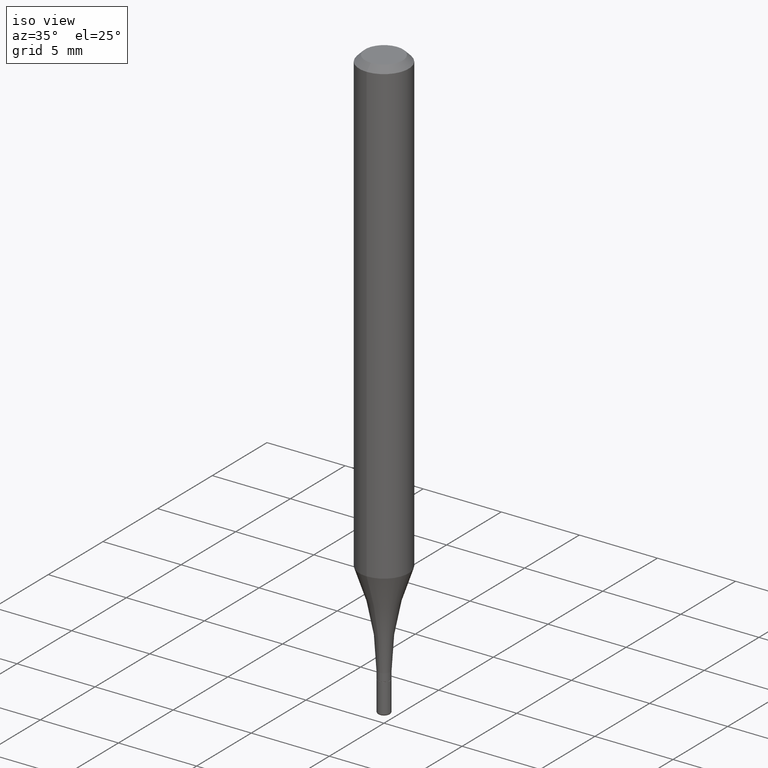
[diagram: clean part render]
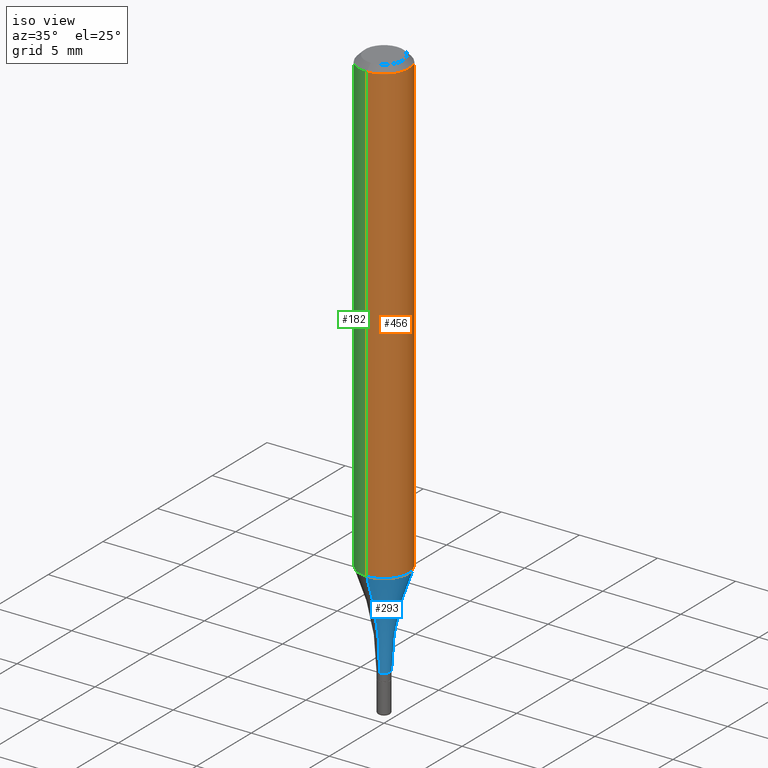
[diagram: same view with three faces highlighted in distinct colors, each labeled with its STEP entity id]
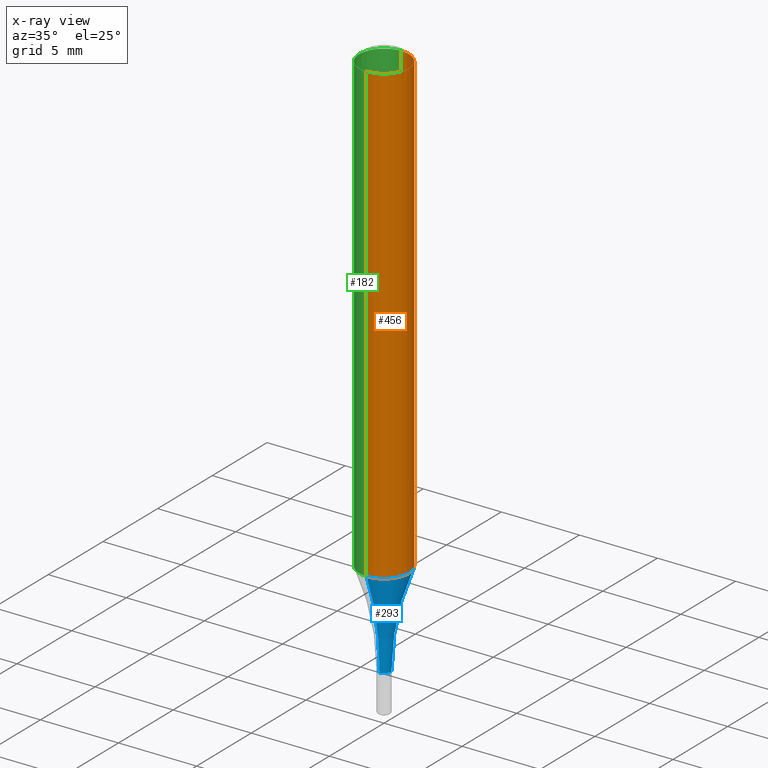
[diagram: x-ray of the same camera — body ghosted, the three highlighted faces saturated]
A machine part, iso view with three faces highlighted in distinct colors.
The next image is the same camera in x-ray (body ghosted, the three faces saturated) — at least one of them is partly hidden behind the body in this view.
Their STEP definitions:

[orange] entity #456 — the highlighted cylindrical surface (edge-blend (fillet) strip) has radius 1.5875 mm, axis along (-0, 0, 1).
#6 = ORIENTED_EDGE ( 'NONE', *, *, #306, .F. ) ;
#23 = AXIS2_PLACEMENT_3D ( 'NONE', #154, #414, #447 ) ;
#25 = CARTESIAN_POINT ( 'NONE',  ( -4.364351673553640100E-16, -0.06250000000000409395, -1.164459708680822603 ) ) ;
#29 = ORIENTED_EDGE ( 'NONE', *, *, #59, .T. ) ;
#39 = VECTOR ( 'NONE', #170, 39.37007874015748143 ) ;
#59 = EDGE_CURVE ( 'NONE', #120, #348, #302, .T. ) ;
#91 = DIRECTION ( 'NONE',  ( -6.982962677686265133E-15, -1.000000000000000000, 3.491850649655520627E-15 ) ) ;
#101 = DIRECTION ( 'NONE',  ( -2.445210917823208217E-29, 3.491850649655521021E-15, 1.000000000000000000 ) ) ;
#119 = LINE ( 'NONE', #162, #258 ) ;
#120 = VERTEX_POINT ( 'NONE', #25 ) ;
#129 = CARTESIAN_POINT ( 'NONE',  ( 0.000000000000000000, 0.000000000000000000, 0.000000000000000000 ) ) ;
#142 = AXIS2_PLACEMENT_3D ( 'NONE', #234, #101, #508 ) ;
#154 = CARTESIAN_POINT ( 'NONE',  ( 3.667816376734739913E-31, -5.237775974483178191E-17, -0.01499999999999970281 ) ) ;
#162 = CARTESIAN_POINT ( 'NONE',  ( 4.440892098500626162E-16, 0.06250000000000001388, -2.182406656034700885E-16 ) ) ;
#167 = DIRECTION ( 'NONE',  ( -2.445210917823208217E-29, 3.491850649655521416E-15, 1.000000000000000000 ) ) ;
#170 = DIRECTION ( 'NONE',  ( -2.445210917823208217E-29, 3.491850649655521416E-15, 1.000000000000000000 ) ) ;
#172 = CARTESIAN_POINT ( 'NONE',  ( -4.287811248607203282E-16, -0.06250000000000005551, -0.01499999999999948597 ) ) ;
#178 = FACE_OUTER_BOUND ( 'NONE', #394, .T. ) ;
#199 = AXIS2_PLACEMENT_3D ( 'NONE', #129, #220, #91 ) ;
#220 = DIRECTION ( 'NONE',  ( -2.445210917823208217E-29, 3.491850649655521021E-15, 1.000000000000000000 ) ) ;
#234 = CARTESIAN_POINT ( 'NONE',  ( 2.847349593031579707E-29, -4.066119390254809965E-15, -1.164459708680822603 ) ) ;
#244 = EDGE_CURVE ( 'NONE', #358, #476, #353, .T. ) ;
#253 = CARTESIAN_POINT ( 'NONE',  ( 4.440892098500906207E-16, 0.06249999999999589911, -1.164459708680822825 ) ) ;
#258 = VECTOR ( 'NONE', #167, 39.37007874015748143 ) ;
#263 = EDGE_CURVE ( 'NONE', #348, #476, #119, .T. ) ;
#275 = ORIENTED_EDGE ( 'NONE', *, *, #263, .T. ) ;
#302 = CIRCLE ( 'NONE', #142, 0.06250000000000001388 ) ;
#306 = EDGE_CURVE ( 'NONE', #120, #358, #408, .T. ) ;
#331 = CARTESIAN_POINT ( 'NONE',  ( 4.364351673553919652E-16, 0.06249999999999995143, -0.01499999999999992138 ) ) ;
#348 = VERTEX_POINT ( 'NONE', #253 ) ;
#353 = CIRCLE ( 'NONE', #23, 0.06250000000000000000 ) ;
#358 = VERTEX_POINT ( 'NONE', #172 ) ;
#374 = CARTESIAN_POINT ( 'NONE',  ( -4.364351673553916694E-16, -0.06250000000000001388, 2.182406656034700885E-16 ) ) ;
#394 = EDGE_LOOP ( 'NONE', ( #29, #275, #435, #6 ) ) ;
#408 = LINE ( 'NONE', #374, #39 ) ;
#414 = DIRECTION ( 'NONE',  ( -2.445210917823208217E-29, 3.491850649655521021E-15, 1.000000000000000000 ) ) ;
#419 = CYLINDRICAL_SURFACE ( 'NONE', #199, 0.06250000000000001388 ) ;
#435 = ORIENTED_EDGE ( 'NONE', *, *, #244, .F. ) ;
#447 = DIRECTION ( 'NONE',  ( -6.982962677686265922E-15, -1.000000000000000000, 3.483106191921935554E-15 ) ) ;
#456 = ADVANCED_FACE ( 'NONE', ( #178 ), #419, .T. ) ;
#476 = VERTEX_POINT ( 'NONE', #331 ) ;
#508 = DIRECTION ( 'NONE',  ( -6.982962677686265922E-15, -1.000000000000000000, 4.370956789862820361E-15 ) ) ;

[blue] entity #293 — the highlighted toroidal blend (fillet) surface has major radius 16.2712 mm and minor (blend) radius 15.875 mm.
#2 = AXIS2_PLACEMENT_3D ( 'NONE', #54, #495, #130 ) ;
#11 = DIRECTION ( 'NONE',  ( -2.445210917823208217E-29, 3.491850649655521021E-15, 1.000000000000000000 ) ) ;
#25 = CARTESIAN_POINT ( 'NONE',  ( -4.364351673553640100E-16, -0.06250000000000409395, -1.164459708680822603 ) ) ;
#33 = CARTESIAN_POINT ( 'NONE',  ( -1.089342177718721665E-16, -0.01560000000000499702, -1.402000000000000579 ) ) ;
#35 = ORIENTED_EDGE ( 'NONE', *, *, #301, .F. ) ;
#54 = CARTESIAN_POINT ( 'NONE',  ( -4.473285891325789329E-15, -0.6406000000000050543, -1.401999999999998359 ) ) ;
#59 = EDGE_CURVE ( 'NONE', #120, #348, #302, .T. ) ;
#82 = EDGE_LOOP ( 'NONE', ( #35, #107, #363, #440 ) ) ;
#101 = DIRECTION ( 'NONE',  ( -2.445210917823208217E-29, 3.491850649655521021E-15, 1.000000000000000000 ) ) ;
#107 = ORIENTED_EDGE ( 'NONE', *, *, #59, .F. ) ;
#116 = CARTESIAN_POINT ( 'NONE',  ( 4.551736765279235337E-15, 0.6405999999999951733, -1.402000000000002800 ) ) ;
#120 = VERTEX_POINT ( 'NONE', #25 ) ;
#130 = DIRECTION ( 'NONE',  ( -6.982962677686264344E-15, -1.000000000000000000, 0.000000000000000000 ) ) ;
#136 = CIRCLE ( 'NONE', #432, 0.6250000000000001110 ) ;
#142 = AXIS2_PLACEMENT_3D ( 'NONE', #234, #101, #508 ) ;
#153 = VERTEX_POINT ( 'NONE', #33 ) ;
#171 = VERTEX_POINT ( 'NONE', #398 ) ;
#174 = DIRECTION ( 'NONE',  ( -6.982962677686265922E-15, -1.000000000000000000, 3.491850649655521416E-15 ) ) ;
#194 = AXIS2_PLACEMENT_3D ( 'NONE', #215, #11, #174 ) ;
#215 = CARTESIAN_POINT ( 'NONE',  ( 3.428547266271562890E-29, -4.895056837058092433E-15, -1.402000000000000579 ) ) ;
#224 = AXIS2_PLACEMENT_3D ( 'NONE', #454, #291, #452 ) ;
#234 = CARTESIAN_POINT ( 'NONE',  ( 2.847349593031579707E-29, -4.066119390254809965E-15, -1.164459708680822603 ) ) ;
#240 = CIRCLE ( 'NONE', #224, 0.01560000000000010163 ) ;
#253 = CARTESIAN_POINT ( 'NONE',  ( 4.440892098500906207E-16, 0.06249999999999589911, -1.164459708680822825 ) ) ;
#284 = DIRECTION ( 'NONE',  ( 7.105427357600999492E-15, 1.000000000000000000, 0.000000000000000000 ) ) ;
#291 = DIRECTION ( 'NONE',  ( -2.445210917823208217E-29, 3.491850649655521021E-15, 1.000000000000000000 ) ) ;
#293 = ADVANCED_FACE ( 'NONE', ( #444 ), #297, .F. ) ;
#297 = TOROIDAL_SURFACE ( 'NONE', #194, 0.6406000000000001693, 0.6250000000000000000 ) ;
#301 = EDGE_CURVE ( 'NONE', #348, #171, #136, .T. ) ;
#302 = CIRCLE ( 'NONE', #142, 0.06250000000000001388 ) ;
#348 = VERTEX_POINT ( 'NONE', #253 ) ;
#363 = ORIENTED_EDGE ( 'NONE', *, *, #427, .T. ) ;
#364 = DIRECTION ( 'NONE',  ( 1.000000000000000000, -7.105427357601001070E-15, 4.926320031295124979E-29 ) ) ;
#398 = CARTESIAN_POINT ( 'NONE',  ( 2.774669383143507854E-16, 0.01559999999999520451, -1.402000000000000579 ) ) ;
#425 = CIRCLE ( 'NONE', #2, 0.6250000000000001110 ) ;
#427 = EDGE_CURVE ( 'NONE', #120, #153, #425, .T. ) ;
#432 = AXIS2_PLACEMENT_3D ( 'NONE', #116, #364, #284 ) ;
#440 = ORIENTED_EDGE ( 'NONE', *, *, #448, .T. ) ;
#444 = FACE_OUTER_BOUND ( 'NONE', #82, .T. ) ;
#448 = EDGE_CURVE ( 'NONE', #153, #171, #240, .T. ) ;
#452 = DIRECTION ( 'NONE',  ( -6.982962677686265922E-15, -1.000000000000000000, 0.000000000000000000 ) ) ;
#454 = CARTESIAN_POINT ( 'NONE',  ( 3.428185706788139494E-29, -4.895574610817042911E-15, -1.402000000000000579 ) ) ;
#495 = DIRECTION ( 'NONE',  ( -1.000000000000000000, 6.982962677686265922E-15, -4.883557194083112340E-29 ) ) ;
#508 = DIRECTION ( 'NONE',  ( -6.982962677686265922E-15, -1.000000000000000000, 4.370956789862820361E-15 ) ) ;

[green] entity #182 — the highlighted cylindrical surface (edge-blend (fillet) strip) has radius 1.5875 mm, axis along (-0, 0, 1).
#25 = CARTESIAN_POINT ( 'NONE',  ( -4.364351673553640100E-16, -0.06250000000000409395, -1.164459708680822603 ) ) ;
#39 = VECTOR ( 'NONE', #170, 39.37007874015748143 ) ;
#58 = AXIS2_PLACEMENT_3D ( 'NONE', #511, #99, #434 ) ;
#61 = CYLINDRICAL_SURFACE ( 'NONE', #429, 0.06250000000000001388 ) ;
#99 = DIRECTION ( 'NONE',  ( -2.445210917823208217E-29, 3.491850649655521021E-15, 1.000000000000000000 ) ) ;
#103 = CIRCLE ( 'NONE', #423, 0.06250000000000000000 ) ;
#105 = DIRECTION ( 'NONE',  ( -2.445210917823208217E-29, 3.491850649655521021E-15, 1.000000000000000000 ) ) ;
#119 = LINE ( 'NONE', #162, #258 ) ;
#120 = VERTEX_POINT ( 'NONE', #25 ) ;
#121 = EDGE_CURVE ( 'NONE', #476, #358, #103, .T. ) ;
#144 = DIRECTION ( 'NONE',  ( -6.982962677686265922E-15, -1.000000000000000000, 3.483106191921935554E-15 ) ) ;
#150 = CIRCLE ( 'NONE', #58, 0.06250000000000001388 ) ;
#157 = CARTESIAN_POINT ( 'NONE',  ( 3.667816376734739913E-31, -5.237775974483178191E-17, -0.01499999999999970281 ) ) ;
#162 = CARTESIAN_POINT ( 'NONE',  ( 4.440892098500626162E-16, 0.06250000000000001388, -2.182406656034700885E-16 ) ) ;
#167 = DIRECTION ( 'NONE',  ( -2.445210917823208217E-29, 3.491850649655521416E-15, 1.000000000000000000 ) ) ;
#170 = DIRECTION ( 'NONE',  ( -2.445210917823208217E-29, 3.491850649655521416E-15, 1.000000000000000000 ) ) ;
#172 = CARTESIAN_POINT ( 'NONE',  ( -4.287811248607203282E-16, -0.06250000000000005551, -0.01499999999999948597 ) ) ;
#182 = ADVANCED_FACE ( 'NONE', ( #266 ), #61, .T. ) ;
#207 = EDGE_CURVE ( 'NONE', #348, #120, #150, .T. ) ;
#229 = DIRECTION ( 'NONE',  ( -2.445210917823208217E-29, 3.491850649655521021E-15, 1.000000000000000000 ) ) ;
#230 = EDGE_LOOP ( 'NONE', ( #313, #241, #308, #400 ) ) ;
#241 = ORIENTED_EDGE ( 'NONE', *, *, #207, .T. ) ;
#253 = CARTESIAN_POINT ( 'NONE',  ( 4.440892098500906207E-16, 0.06249999999999589911, -1.164459708680822825 ) ) ;
#258 = VECTOR ( 'NONE', #167, 39.37007874015748143 ) ;
#263 = EDGE_CURVE ( 'NONE', #348, #476, #119, .T. ) ;
#266 = FACE_OUTER_BOUND ( 'NONE', #230, .T. ) ;
#303 = DIRECTION ( 'NONE',  ( -6.982962677686265133E-15, -1.000000000000000000, 3.491850649655520627E-15 ) ) ;
#306 = EDGE_CURVE ( 'NONE', #120, #358, #408, .T. ) ;
#308 = ORIENTED_EDGE ( 'NONE', *, *, #306, .T. ) ;
#313 = ORIENTED_EDGE ( 'NONE', *, *, #263, .F. ) ;
#331 = CARTESIAN_POINT ( 'NONE',  ( 4.364351673553919652E-16, 0.06249999999999995143, -0.01499999999999992138 ) ) ;
#348 = VERTEX_POINT ( 'NONE', #253 ) ;
#358 = VERTEX_POINT ( 'NONE', #172 ) ;
#374 = CARTESIAN_POINT ( 'NONE',  ( -4.364351673553916694E-16, -0.06250000000000001388, 2.182406656034700885E-16 ) ) ;
#388 = CARTESIAN_POINT ( 'NONE',  ( 0.000000000000000000, 0.000000000000000000, 0.000000000000000000 ) ) ;
#400 = ORIENTED_EDGE ( 'NONE', *, *, #121, .F. ) ;
#408 = LINE ( 'NONE', #374, #39 ) ;
#423 = AXIS2_PLACEMENT_3D ( 'NONE', #157, #105, #144 ) ;
#429 = AXIS2_PLACEMENT_3D ( 'NONE', #388, #229, #303 ) ;
#434 = DIRECTION ( 'NONE',  ( -6.982962677686265922E-15, -1.000000000000000000, 4.370956789862820361E-15 ) ) ;
#476 = VERTEX_POINT ( 'NONE', #331 ) ;
#511 = CARTESIAN_POINT ( 'NONE',  ( 2.847349593031579707E-29, -4.066119390254809965E-15, -1.164459708680822603 ) ) ;